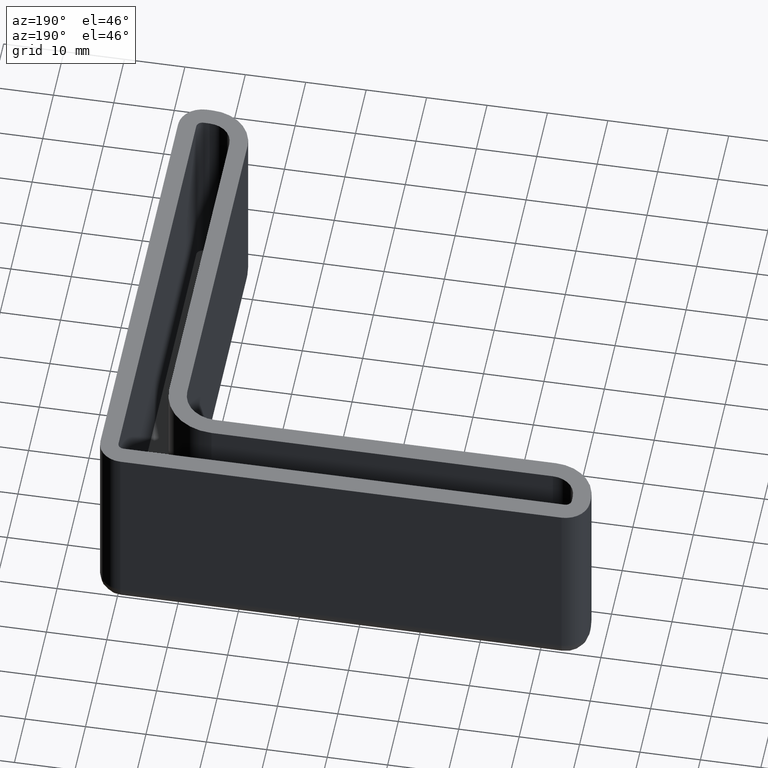
[diagram: clean part render]
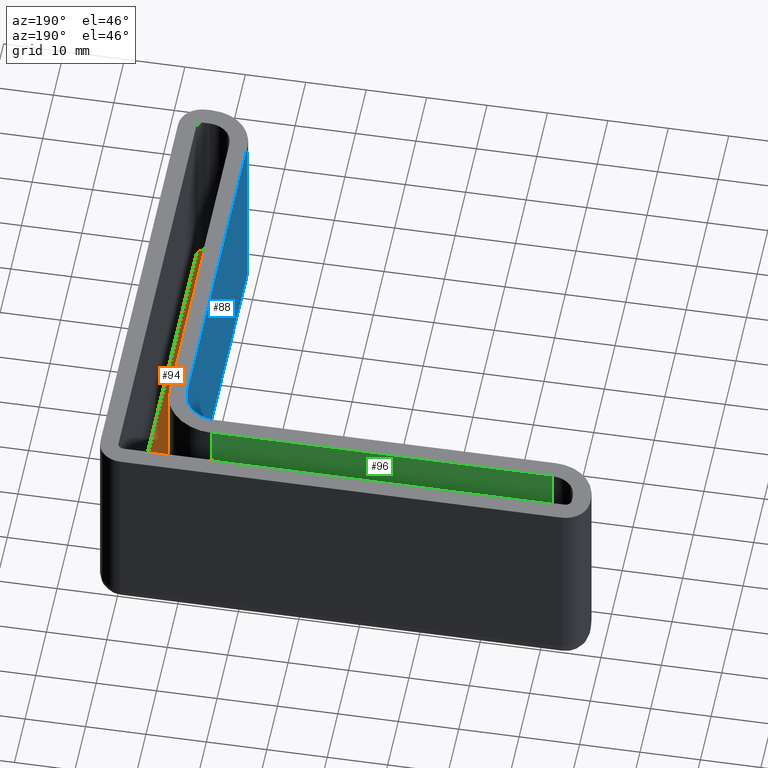
[diagram: same view with three faces highlighted in distinct colors, each labeled with its STEP entity id]
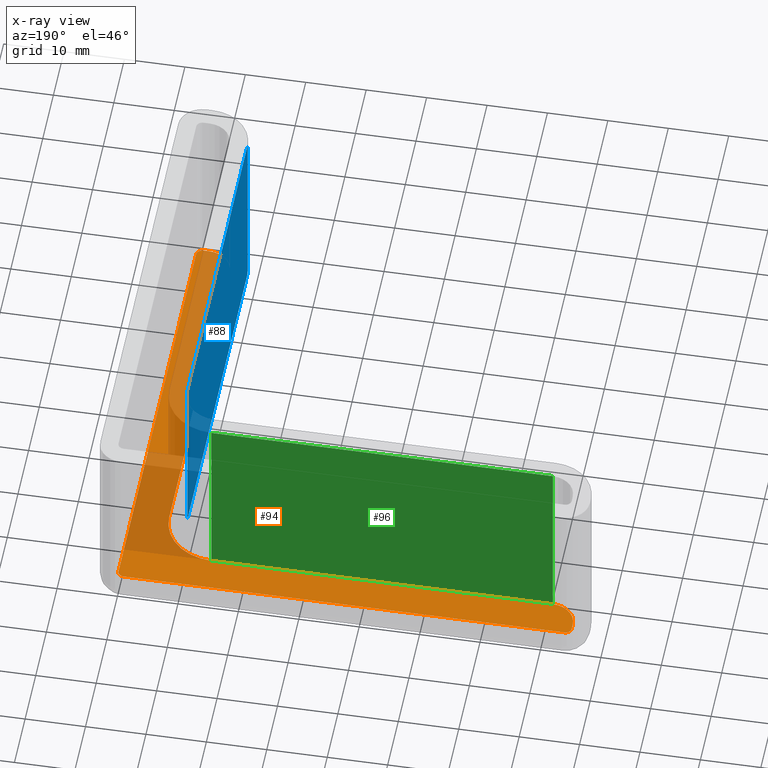
[diagram: x-ray of the same camera — body ghosted, the three highlighted faces saturated]
A machine part, auxiliary view with three faces highlighted in distinct colors.
The next image is the same camera in x-ray (body ghosted, the three faces saturated) — at least one of them is partly hidden behind the body in this view.
Their STEP definitions:

[orange] entity #94 — the highlighted planar face has unit normal (0, -0, 1).
#94 = ADVANCED_FACE( '', ( #154 ), #155, .T. );
#154 = FACE_OUTER_BOUND( '', #248, .T. );
#155 = PLANE( '', #249 );
#248 = EDGE_LOOP( '', ( #476, #477, #478, #479, #480, #481, #482, #483, #484, #485, #486, #487 ) );
#249 = AXIS2_PLACEMENT_3D( '', #488, #489, #490 );
#476 = ORIENTED_EDGE( '', *, *, #687, .T. );
#477 = ORIENTED_EDGE( '', *, *, #688, .T. );
#478 = ORIENTED_EDGE( '', *, *, #689, .T. );
#479 = ORIENTED_EDGE( '', *, *, #690, .T. );
#480 = ORIENTED_EDGE( '', *, *, #691, .F. );
#481 = ORIENTED_EDGE( '', *, *, #681, .F. );
#482 = ORIENTED_EDGE( '', *, *, #686, .T. );
#483 = ORIENTED_EDGE( '', *, *, #684, .F. );
#484 = ORIENTED_EDGE( '', *, *, #692, .T. );
#485 = ORIENTED_EDGE( '', *, *, #693, .F. );
#486 = ORIENTED_EDGE( '', *, *, #694, .T. );
#487 = ORIENTED_EDGE( '', *, *, #695, .T. );
#488 = CARTESIAN_POINT( '', ( -37.5000000000000, -37.5000000000000, -30.0000000000000 ) );
#489 = DIRECTION( '', ( 3.58678896750442E-017, -8.65927457071936E-017, 1.00000000000000 ) );
#490 = DIRECTION( '', ( -1.00000000000000, 1.06733799631484E-048, 3.58678896750442E-017 ) );
#681 = EDGE_CURVE( '', #822, #824, #825, .T. );
#684 = EDGE_CURVE( '', #827, #829, #830, .T. );
#686 = EDGE_CURVE( '', #822, #829, #832, .T. );
#687 = EDGE_CURVE( '', #833, #834, #835, .T. );
#688 = EDGE_CURVE( '', #834, #836, #837, .T. );
#689 = EDGE_CURVE( '', #836, #838, #839, .T. );
#690 = EDGE_CURVE( '', #838, #840, #841, .T. );
#691 = EDGE_CURVE( '', #824, #840, #842, .T. );
#692 = EDGE_CURVE( '', #827, #843, #844, .T. );
#693 = EDGE_CURVE( '', #845, #843, #846, .T. );
#694 = EDGE_CURVE( '', #845, #847, #848, .T. );
#695 = EDGE_CURVE( '', #847, #833, #849, .T. );
#822 = VERTEX_POINT( '', #1008 );
#824 = VERTEX_POINT( '', #1011 );
#825 = LINE( '', #1012, #1013 );
#827 = VERTEX_POINT( '', #1016 );
#829 = VERTEX_POINT( '', #1019 );
#830 = LINE( '', #1020, #1021 );
#832 = CIRCLE( '', #1024, 4.00000000000000 );
#833 = VERTEX_POINT( '', #1025 );
#834 = VERTEX_POINT( '', #1026 );
#835 = CIRCLE( '', #1027, 1.00000000000000 );
#836 = VERTEX_POINT( '', #1028 );
#837 = LINE( '', #1029, #1030 );
#838 = VERTEX_POINT( '', #1031 );
#839 = CIRCLE( '', #1032, 4.00000000000000 );
#840 = VERTEX_POINT( '', #1033 );
#841 = LINE( '', #1034, #1035 );
#842 = CIRCLE( '', #1036, 8.50000000000000 );
#843 = VERTEX_POINT( '', #1037 );
#844 = CIRCLE( '', #1038, 1.00000000000000 );
#845 = VERTEX_POINT( '', #1039 );
#846 = LINE( '', #1040, #1041 );
#847 = VERTEX_POINT( '', #1042 );
#848 = CIRCLE( '', #1043, 1.00000000000000 );
#849 = LINE( '', #1044, #1045 );
#1008 = CARTESIAN_POINT( '', ( -5.99999999999999, -71.0000000000000, -30.0000000000000 ) );
#1011 = CARTESIAN_POINT( '', ( -6.00000000000000, -14.5000000000000, -30.0000000000000 ) );
#1012 = CARTESIAN_POINT( '', ( -5.99999999999999, -75.0000000000000, -30.0000000000000 ) );
#1013 = VECTOR( '', #1207, 1000.00000000000 );
#1016 = CARTESIAN_POINT( '', ( -0.999999999999990, -75.0000000000000, -30.0000000000000 ) );
#1019 = CARTESIAN_POINT( '', ( -2.00000000000000, -75.0000000000000, -30.0000000000000 ) );
#1020 = CARTESIAN_POINT( '', ( 3.46944695195361E-015, -75.0000000000000, -30.0000000000000 ) );
#1021 = VECTOR( '', #1210, 1000.00000000000 );
#1024 = AXIS2_PLACEMENT_3D( '', #1212, #1213, #1214 );
#1025 = CARTESIAN_POINT( '', ( -74.0000000000000, 3.46944695195361E-015, -30.0000000000000 ) );
#1026 = CARTESIAN_POINT( '', ( -75.0000000000000, -0.999999999999990, -30.0000000000000 ) );
#1027 = AXIS2_PLACEMENT_3D( '', #1215, #1216, #1217 );
#1028 = CARTESIAN_POINT( '', ( -75.0000000000000, -2.00000000000000, -30.0000000000000 ) );
#1029 = CARTESIAN_POINT( '', ( -75.0000000000000, 3.46944695195361E-015, -30.0000000000000 ) );
#1030 = VECTOR( '', #1218, 1000.00000000000 );
#1031 = CARTESIAN_POINT( '', ( -71.0000000000000, -5.99999999999999, -30.0000000000000 ) );
#1032 = AXIS2_PLACEMENT_3D( '', #1219, #1220, #1221 );
#1033 = CARTESIAN_POINT( '', ( -14.5000000000000, -6.00000000000000, -30.0000000000000 ) );
#1034 = CARTESIAN_POINT( '', ( -75.0000000000000, -5.99999999999999, -30.0000000000000 ) );
#1035 = VECTOR( '', #1222, 1000.00000000000 );
#1036 = AXIS2_PLACEMENT_3D( '', #1223, #1224, #1225 );
#1037 = CARTESIAN_POINT( '', ( 3.46944695195361E-015, -74.0000000000000, -30.0000000000000 ) );
#1038 = AXIS2_PLACEMENT_3D( '', #1226, #1227, #1228 );
#1039 = CARTESIAN_POINT( '', ( 2.60208521396521E-015, -0.999999999999994, -30.0000000000000 ) );
#1040 = CARTESIAN_POINT( '', ( 2.60208521396521E-015, 2.16840434497101E-015, -30.0000000000000 ) );
#1041 = VECTOR( '', #1229, 1000.00000000000 );
#1042 = CARTESIAN_POINT( '', ( -0.999999999999997, 2.16840434497101E-015, -30.0000000000000 ) );
#1043 = AXIS2_PLACEMENT_3D( '', #1230, #1231, #1232 );
#1044 = CARTESIAN_POINT( '', ( 2.60208521396521E-015, 2.16840434497101E-015, -30.0000000000000 ) );
#1045 = VECTOR( '', #1233, 1000.00000000000 );
#1207 = DIRECTION( '', ( 0.000000000000000, 1.00000000000000, 8.65927457071936E-017 ) );
#1210 = DIRECTION( '', ( -1.00000000000000, 0.000000000000000, 3.58678896750442E-017 ) );
#1212 = CARTESIAN_POINT( '', ( -2.00000000000000, -71.0000000000000, -30.0000000000000 ) );
#1213 = DIRECTION( '', ( 3.58678896750442E-017, -8.65927457071936E-017, 1.00000000000000 ) );
#1214 = DIRECTION( '', ( -0.707106781186547, -0.707106781186548, -3.58678896750443E-017 ) );
#1215 = CARTESIAN_POINT( '', ( -74.0000000000000, -0.999999999999997, -30.0000000000000 ) );
#1216 = DIRECTION( '', ( 3.58678896750442E-017, -8.65927457071936E-017, 1.00000000000000 ) );
#1217 = DIRECTION( '', ( -0.707106781186546, 0.707106781186549, 8.65927457071936E-017 ) );
#1218 = DIRECTION( '', ( 0.000000000000000, -1.00000000000000, -8.65927457071936E-017 ) );
#1219 = CARTESIAN_POINT( '', ( -71.0000000000000, -2.00000000000000, -30.0000000000000 ) );
#1220 = DIRECTION( '', ( 3.58678896750442E-017, -8.65927457071936E-017, 1.00000000000000 ) );
#1221 = DIRECTION( '', ( -0.707106781186548, -0.707106781186547, -3.58678896750441E-017 ) );
#1222 = DIRECTION( '', ( 1.00000000000000, 0.000000000000000, -3.58678896750442E-017 ) );
#1223 = CARTESIAN_POINT( '', ( -14.5000000000000, -14.5000000000000, -30.0000000000000 ) );
#1224 = DIRECTION( '', ( 3.58678896750442E-017, -8.65927457071936E-017, 1.00000000000000 ) );
#1225 = DIRECTION( '', ( 0.707106781186547, 0.707106781186548, 3.58678896750443E-017 ) );
#1226 = CARTESIAN_POINT( '', ( -0.999999999999997, -74.0000000000000, -30.0000000000000 ) );
#1227 = DIRECTION( '', ( 3.58678896750442E-017, -8.65927457071936E-017, 1.00000000000000 ) );
#1228 = DIRECTION( '', ( 0.707106781186549, -0.707106781186546, -8.65927457071935E-017 ) );
#1229 = DIRECTION( '', ( 0.000000000000000, -1.00000000000000, -8.65927457071936E-017 ) );
#1230 = CARTESIAN_POINT( '', ( -0.999999999999997, -0.999999999999994, -30.0000000000000 ) );
#1231 = DIRECTION( '', ( 3.58678896750442E-017, -8.65927457071936E-017, 1.00000000000000 ) );
#1232 = DIRECTION( '', ( 0.707106781186549, 0.707106781186546, 3.58678896750440E-017 ) );
#1233 = DIRECTION( '', ( -1.00000000000000, 0.000000000000000, 3.58678896750442E-017 ) );

[blue] entity #88 — the highlighted planar face has unit normal (-1, -0, 0).
#88 = ADVANCED_FACE( '', ( #141 ), #142, .T. );
#141 = FACE_OUTER_BOUND( '', #235, .T. );
#142 = PLANE( '', #236 );
#235 = EDGE_LOOP( '', ( #414, #415, #416, #417 ) );
#236 = AXIS2_PLACEMENT_3D( '', #418, #419, #420 );
#414 = ORIENTED_EDGE( '', *, *, #656, .F. );
#415 = ORIENTED_EDGE( '', *, *, #659, .F. );
#416 = ORIENTED_EDGE( '', *, *, #660, .F. );
#417 = ORIENTED_EDGE( '', *, *, #638, .F. );
#418 = CARTESIAN_POINT( '', ( -9.00000000000000, -6.00000000000000, -30.0000000000000 ) );
#419 = DIRECTION( '', ( -1.00000000000000, -3.58732406867153E-049, 3.58678896750442E-017 ) );
#420 = DIRECTION( '', ( -3.10589904968477E-033, -1.00000000000000, -8.65927457071936E-017 ) );
#638 = EDGE_CURVE( '', #748, #751, #752, .T. );
#656 = EDGE_CURVE( '', #778, #748, #780, .T. );
#659 = EDGE_CURVE( '', #784, #778, #785, .T. );
#660 = EDGE_CURVE( '', #751, #784, #786, .T. );
#748 = VERTEX_POINT( '', #911 );
#751 = VERTEX_POINT( '', #914 );
#752 = LINE( '', #915, #916 );
#778 = VERTEX_POINT( '', #951 );
#780 = LINE( '', #953, #954 );
#784 = VERTEX_POINT( '', #958 );
#785 = LINE( '', #959, #960 );
#786 = LINE( '', #961, #962 );
#911 = CARTESIAN_POINT( '', ( -9.00000000000000, -14.5000000000000, -30.0000000000000 ) );
#914 = CARTESIAN_POINT( '', ( -9.00000000000000, -14.5000000000000, -2.03492952411905E-015 ) );
#915 = CARTESIAN_POINT( '', ( -9.00000000000000, -14.5000000000000, -30.0000000000000 ) );
#916 = VECTOR( '', #1126, 1000.00000000000 );
#951 = CARTESIAN_POINT( '', ( -8.99999999999999, -71.0000000000000, -30.0000000000000 ) );
#953 = CARTESIAN_POINT( '', ( -9.00000000000000, -21.7500000000000, -30.0000000000000 ) );
#954 = VECTOR( '', #1160, 1000.00000000000 );
#958 = CARTESIAN_POINT( '', ( -9.00000000000000, -71.0000000000000, -6.92741965657548E-015 ) );
#959 = CARTESIAN_POINT( '', ( -8.99999999999999, -71.0000000000000, -30.0000000000000 ) );
#960 = VECTOR( '', #1167, 1000.00000000000 );
#961 = CARTESIAN_POINT( '', ( -9.00000000000000, -21.7500000000000, -2.66272693049620E-015 ) );
#962 = VECTOR( '', #1168, 1000.00000000000 );
#1126 = DIRECTION( '', ( 3.58678896750442E-017, -8.65927457071936E-017, 1.00000000000000 ) );
#1160 = DIRECTION( '', ( 0.000000000000000, 1.00000000000000, 8.65927457071936E-017 ) );
#1167 = DIRECTION( '', ( -3.58678896750442E-017, 8.65927457071936E-017, -1.00000000000000 ) );
#1168 = DIRECTION( '', ( 0.000000000000000, -1.00000000000000, -8.65927457071936E-017 ) );

[green] entity #96 — the highlighted planar face has unit normal (-0, -1, -0).
#96 = ADVANCED_FACE( '', ( #158 ), #159, .F. );
#158 = FACE_OUTER_BOUND( '', #252, .T. );
#159 = PLANE( '', #253 );
#252 = EDGE_LOOP( '', ( #498, #499, #500, #501 ) );
#253 = AXIS2_PLACEMENT_3D( '', #502, #503, #504 );
#498 = ORIENTED_EDGE( '', *, *, #697, .F. );
#499 = ORIENTED_EDGE( '', *, *, #668, .F. );
#500 = ORIENTED_EDGE( '', *, *, #696, .F. );
#501 = ORIENTED_EDGE( '', *, *, #690, .F. );
#502 = CARTESIAN_POINT( '', ( -75.0000000000000, -5.99999999999999, -30.0000000000000 ) );
#503 = DIRECTION( '', ( -1.43492962746861E-048, -1.00000000000000, -8.65927457071936E-017 ) );
#504 = DIRECTION( '', ( -1.00000000000000, -8.67907354531593E-033, 1.00228644725778E-016 ) );
#668 = EDGE_CURVE( '', #797, #800, #801, .T. );
#690 = EDGE_CURVE( '', #838, #840, #841, .T. );
#696 = EDGE_CURVE( '', #840, #797, #850, .T. );
#697 = EDGE_CURVE( '', #800, #838, #851, .T. );
#797 = VERTEX_POINT( '', #976 );
#800 = VERTEX_POINT( '', #979 );
#801 = LINE( '', #980, #981 );
#838 = VERTEX_POINT( '', #1031 );
#840 = VERTEX_POINT( '', #1033 );
#841 = LINE( '', #1034, #1035 );
#850 = LINE( '', #1046, #1047 );
#851 = LINE( '', #1048, #1049 );
#976 = CARTESIAN_POINT( '', ( -14.5000000000000, -5.99999999999999, 1.69429566495615E-015 ) );
#979 = CARTESIAN_POINT( '', ( -71.0000000000000, -5.99999999999999, 3.74069943640694E-015 ) );
#980 = CARTESIAN_POINT( '', ( -56.2500000000000, -6.00000000000000, 1.54849548363443E-015 ) );
#981 = VECTOR( '', #1184, 1000.00000000000 );
#1031 = CARTESIAN_POINT( '', ( -71.0000000000000, -5.99999999999999, -30.0000000000000 ) );
#1033 = CARTESIAN_POINT( '', ( -14.5000000000000, -6.00000000000000, -30.0000000000000 ) );
#1034 = CARTESIAN_POINT( '', ( -75.0000000000000, -5.99999999999999, -30.0000000000000 ) );
#1035 = VECTOR( '', #1222, 1000.00000000000 );
#1046 = CARTESIAN_POINT( '', ( -14.5000000000000, -6.00000000000000, -30.0000000000000 ) );
#1047 = VECTOR( '', #1234, 1000.00000000000 );
#1048 = CARTESIAN_POINT( '', ( -71.0000000000000, -5.99999999999999, -30.0000000000000 ) );
#1049 = VECTOR( '', #1235, 1000.00000000000 );
#1184 = DIRECTION( '', ( -1.00000000000000, 0.000000000000000, 3.58678896750442E-017 ) );
#1222 = DIRECTION( '', ( 1.00000000000000, 0.000000000000000, -3.58678896750442E-017 ) );
#1234 = DIRECTION( '', ( 3.58678896750442E-017, -8.65927457071936E-017, 1.00000000000000 ) );
#1235 = DIRECTION( '', ( -3.58678896750442E-017, 8.65927457071936E-017, -1.00000000000000 ) );